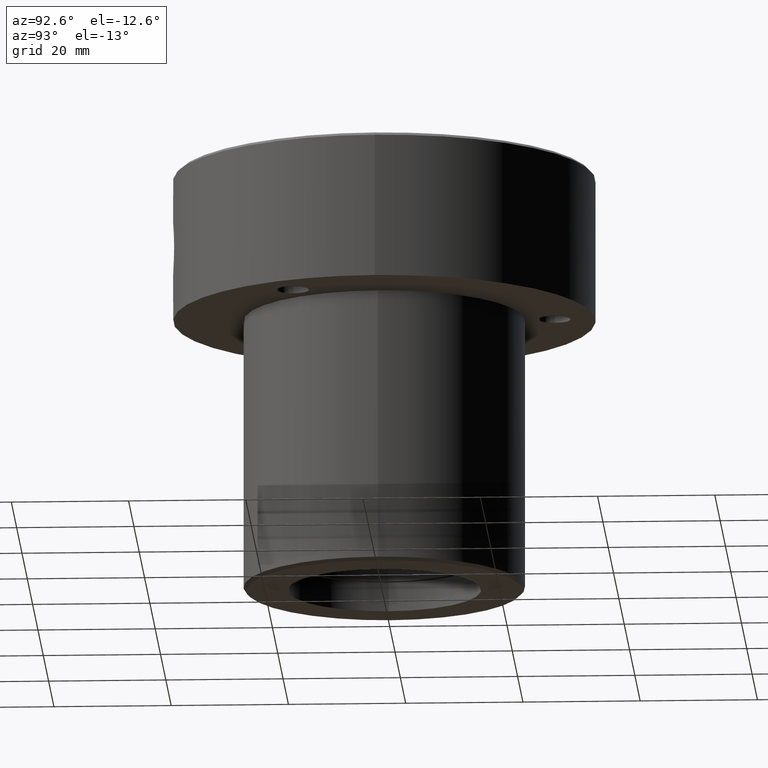
[diagram: clean part render]
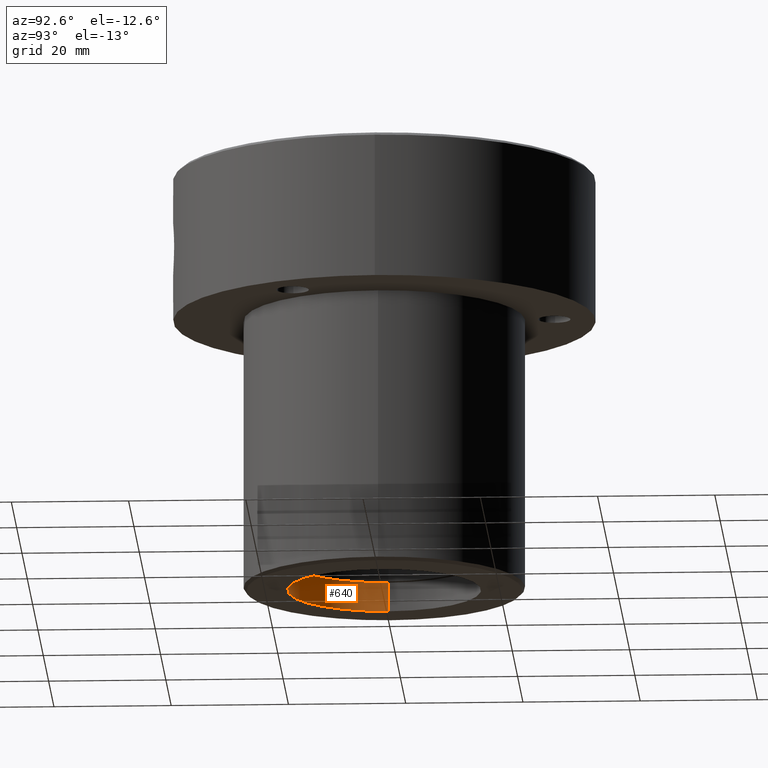
[diagram: same view with one face highlighted and labeled with its STEP entity id]
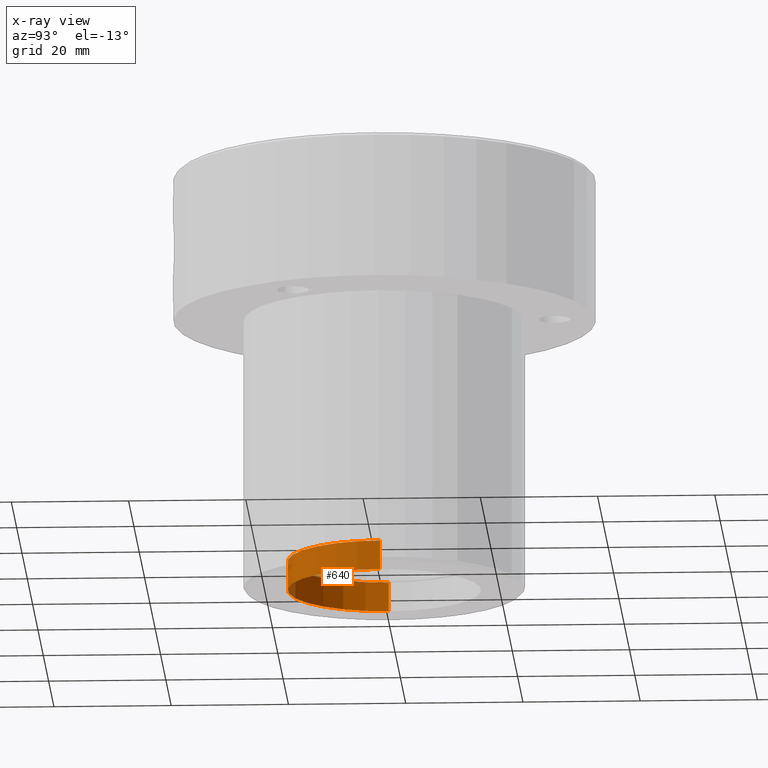
[diagram: x-ray of the same camera — body ghosted, the highlighted face saturated]
A machine part, auxiliary view. The second image highlights one B-rep face of the part: STEP entity #640.
The next image is the same camera in x-ray: the body ghosted, the highlighted face saturated — about 1% of this face is hidden behind the body in this view.
In plain terms, the highlighted cylindrical surface (partial cylindrical patch) has radius 16.5 mm, axis along (-0, -0, -1).
Its self-contained STEP definition (entity closure, byte-faithful):
#7 = ORIENTED_EDGE ( 'NONE', *, *, #818, .T. ) ;
#57 = CARTESIAN_POINT ( 'NONE',  ( -16.50000000000000000, 0.000000000000000000, -66.99999999999998579 ) ) ;
#123 = DIRECTION ( 'NONE',  ( -1.000000000000000000, 0.000000000000000000, 0.000000000000000000 ) ) ;
#131 = VERTEX_POINT ( 'NONE', #1089 ) ;
#194 = ORIENTED_EDGE ( 'NONE', *, *, #1034, .F. ) ;
#235 = DIRECTION ( 'NONE',  ( 0.000000000000000000, 0.000000000000000000, -1.000000000000000000 ) ) ;
#253 = VERTEX_POINT ( 'NONE', #820 ) ;
#255 = LINE ( 'NONE', #57, #832 ) ;
#294 = VECTOR ( 'NONE', #835, 1000.000000000000000 ) ;
#336 = FACE_OUTER_BOUND ( 'NONE', #1130, .T. ) ;
#413 = CARTESIAN_POINT ( 'NONE',  ( 0.000000000000000000, 0.000000000000000000, -66.99999999999998579 ) ) ;
#445 = DIRECTION ( 'NONE',  ( -1.000000000000000000, 0.000000000000000000, 0.000000000000000000 ) ) ;
#534 = AXIS2_PLACEMENT_3D ( 'NONE', #413, #235, #1181 ) ;
#572 = ORIENTED_EDGE ( 'NONE', *, *, #936, .F. ) ;
#630 = AXIS2_PLACEMENT_3D ( 'NONE', #1103, #794, #123 ) ;
#640 = ADVANCED_FACE ( 'NONE', ( #336 ), #722, .F. ) ;
#642 = DIRECTION ( 'NONE',  ( 0.000000000000000000, 0.000000000000000000, -1.000000000000000000 ) ) ;
#645 = LINE ( 'NONE', #730, #294 ) ;
#696 = VERTEX_POINT ( 'NONE', #1123 ) ;
#713 = VERTEX_POINT ( 'NONE', #814 ) ;
#722 = CYLINDRICAL_SURFACE ( 'NONE', #630, 16.50000000000000000 ) ;
#730 = CARTESIAN_POINT ( 'NONE',  ( 16.50000000000000000, 2.020667218593133100E-15, -66.99999999999998579 ) ) ;
#794 = DIRECTION ( 'NONE',  ( -0.000000000000000000, -0.000000000000000000, -1.000000000000000000 ) ) ;
#814 = CARTESIAN_POINT ( 'NONE',  ( -16.50000000000000000, 0.000000000000000000, -72.00000000000000000 ) ) ;
#818 = EDGE_CURVE ( 'NONE', #253, #131, #645, .T. ) ;
#820 = CARTESIAN_POINT ( 'NONE',  ( 16.50000000000000000, 2.020667218593133100E-15, -66.99999999999998579 ) ) ;
#832 = VECTOR ( 'NONE', #1100, 1000.000000000000000 ) ;
#835 = DIRECTION ( 'NONE',  ( -0.000000000000000000, -0.000000000000000000, -1.000000000000000000 ) ) ;
#910 = AXIS2_PLACEMENT_3D ( 'NONE', #1215, #642, #445 ) ;
#936 = EDGE_CURVE ( 'NONE', #253, #696, #1062, .T. ) ;
#947 = ORIENTED_EDGE ( 'NONE', *, *, #1088, .T. ) ;
#956 = CIRCLE ( 'NONE', #910, 16.50000000000000000 ) ;
#1034 = EDGE_CURVE ( 'NONE', #696, #713, #255, .T. ) ;
#1062 = CIRCLE ( 'NONE', #534, 16.50000000000000000 ) ;
#1088 = EDGE_CURVE ( 'NONE', #131, #713, #956, .T. ) ;
#1089 = CARTESIAN_POINT ( 'NONE',  ( 16.50000000000000000, 2.020667218593133100E-15, -72.00000000000000000 ) ) ;
#1100 = DIRECTION ( 'NONE',  ( -0.000000000000000000, -0.000000000000000000, -1.000000000000000000 ) ) ;
#1103 = CARTESIAN_POINT ( 'NONE',  ( 0.000000000000000000, 0.000000000000000000, -66.99999999999998579 ) ) ;
#1123 = CARTESIAN_POINT ( 'NONE',  ( -16.50000000000000000, 0.000000000000000000, -66.99999999999998579 ) ) ;
#1130 = EDGE_LOOP ( 'NONE', ( #572, #7, #947, #194 ) ) ;
#1181 = DIRECTION ( 'NONE',  ( -1.000000000000000000, 0.000000000000000000, 0.000000000000000000 ) ) ;
#1215 = CARTESIAN_POINT ( 'NONE',  ( 0.000000000000000000, 0.000000000000000000, -72.00000000000000000 ) ) ;